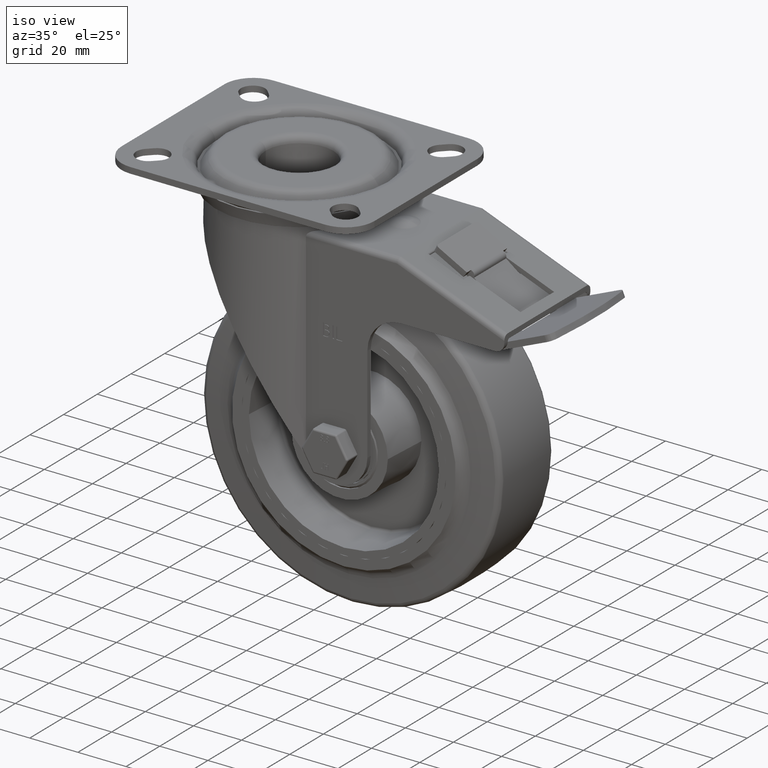
[diagram: clean part render]
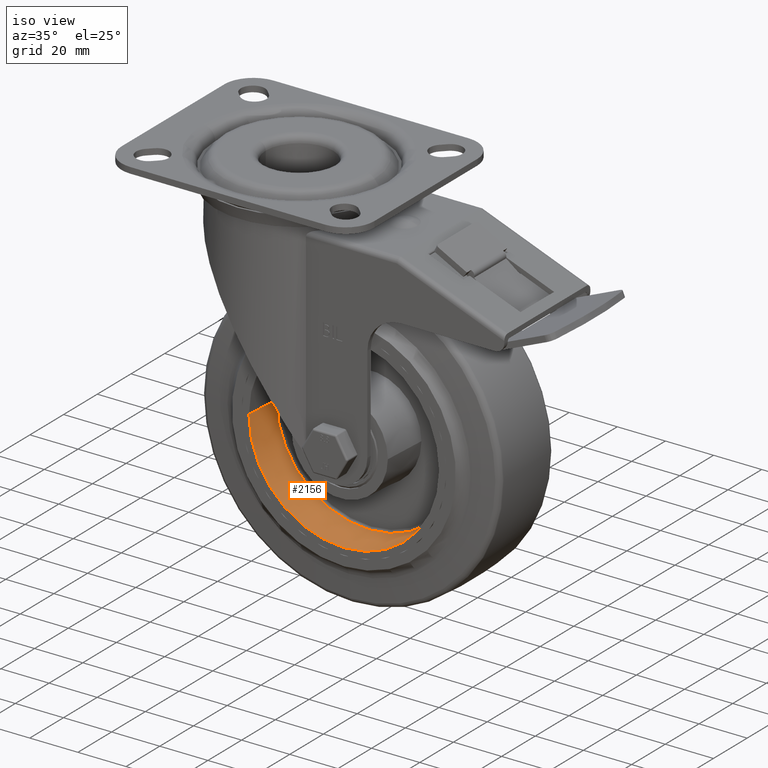
[diagram: same view with one face highlighted and labeled with its STEP entity id]
A machine part, iso view. The second image highlights one B-rep face of the part: STEP entity #2156.
In plain terms, the highlighted conical surface has half-angle 3.576 deg.
Its self-contained STEP definition (entity closure, byte-faithful):
#2156=ADVANCED_FACE('66:537',(#4085),#4086,.F.);
#4085=FACE_OUTER_BOUND('',#8163,.T.);
#4086=CONICAL_SURFACE('',#8164,0.039,0.0624188099959559);
#8163=EDGE_LOOP('',(#18292,#18293,#18294,#18295,#18296));
#8164=AXIS2_PLACEMENT_3D('',#18297,#18298,#18299);
#18292=ORIENTED_EDGE('',*,*,#26345,.F.);
#18293=ORIENTED_EDGE('',*,*,#26346,.F.);
#18294=ORIENTED_EDGE('',*,*,#26347,.F.);
#18295=ORIENTED_EDGE('',*,*,#26348,.F.);
#18296=ORIENTED_EDGE('',*,*,#26349,.F.);
#18297=CARTESIAN_POINT('',(2.47864182583298E-17,-0.012,0.0));
#18298=DIRECTION('',(3.22201717217869E-15,-1.0,-0.0));
#18299=DIRECTION('',(-1.0,-3.22201717217869E-15,0.0));
#26345=EDGE_CURVE('',#30492,#30493,#30494,.T.);
#26346=EDGE_CURVE('66:597',#30495,#30492,#30496,.T.);
#26347=EDGE_CURVE('',#30497,#30495,#30498,.T.);
#26348=EDGE_CURVE('66:591',#30499,#30497,#30500,.T.);
#26349=EDGE_CURVE('66:591',#30493,#30499,#30501,.T.);
#30492=VERTEX_POINT('',#37280);
#30493=VERTEX_POINT('',#37281);
#30494=LINE('',#37282,#37283);
#30495=VERTEX_POINT('',#37284);
#30496=CIRCLE('',#37285,0.0395);
#30497=VERTEX_POINT('',#37286);
#30498=LINE('',#37287,#37288);
#30499=VERTEX_POINT('',#37289);
#30500=CIRCLE('',#37290,0.0385586013571153);
#30501=CIRCLE('',#37291,0.0385586013571153);
#37280=CARTESIAN_POINT('',(-0.0394999999999999,-0.0200000000000001,0.0));
#37281=CARTESIAN_POINT('',(-0.0385586013571153,-0.00493762171384497,-9.44413354631801E-18));
#37282=CARTESIAN_POINT('',(-0.039,-0.0120000000000001,-4.77612251667468E-18));
#37283=VECTOR('',#47581,1.0);
#37284=CARTESIAN_POINT('',(0.0395,-0.0199999999999999,4.83735485663204E-18));
#37285=AXIS2_PLACEMENT_3D('',#47582,#47583,#47584);
#37286=CARTESIAN_POINT('',(0.0385586013571153,-0.00493762171384469,4.722066773159E-18));
#37287=CARTESIAN_POINT('',(0.039,-0.0119999999999999,4.77612251667468E-18));
#37288=VECTOR('',#47585,1.0);
#37289=CARTESIAN_POINT('',(6.73038870218213E-18,-0.00493762171384483,-0.0385586013571153));
#37290=AXIS2_PLACEMENT_3D('',#47586,#47587,#47588);
#37291=AXIS2_PLACEMENT_3D('',#47589,#47590,#47591);
#47581=DIRECTION('',(0.0623782861551771,0.998052578482889,7.63913684762393E-18));
#47582=CARTESIAN_POINT('',(5.05625556357594E-17,-0.02,0.0));
#47583=DIRECTION('',(-3.22201717217869E-15,1.0,0.0));
#47584=DIRECTION('',(-1.0,-3.22201717217869E-15,0.0));
#47585=DIRECTION('',(0.0623782861551835,-0.998052578482888,7.63913684762392E-18));
#47586=CARTESIAN_POINT('',(3.46944695195361E-18,-0.00493762171384483,-4.722066773159E-18));
#47587=DIRECTION('',(3.59914190851571E-15,-1.0,-3.54622257737563E-31));
#47588=DIRECTION('',(1.0,3.59914190851571E-15,-1.99792510786374E-32));
#47589=CARTESIAN_POINT('',(3.46944695195361E-18,-0.00493762171384483,-4.722066773159E-18));
#47590=DIRECTION('',(3.59914190851571E-15,-1.0,-3.54622257737563E-31));
#47591=DIRECTION('',(1.0,3.59914190851571E-15,-1.99792510786374E-32));